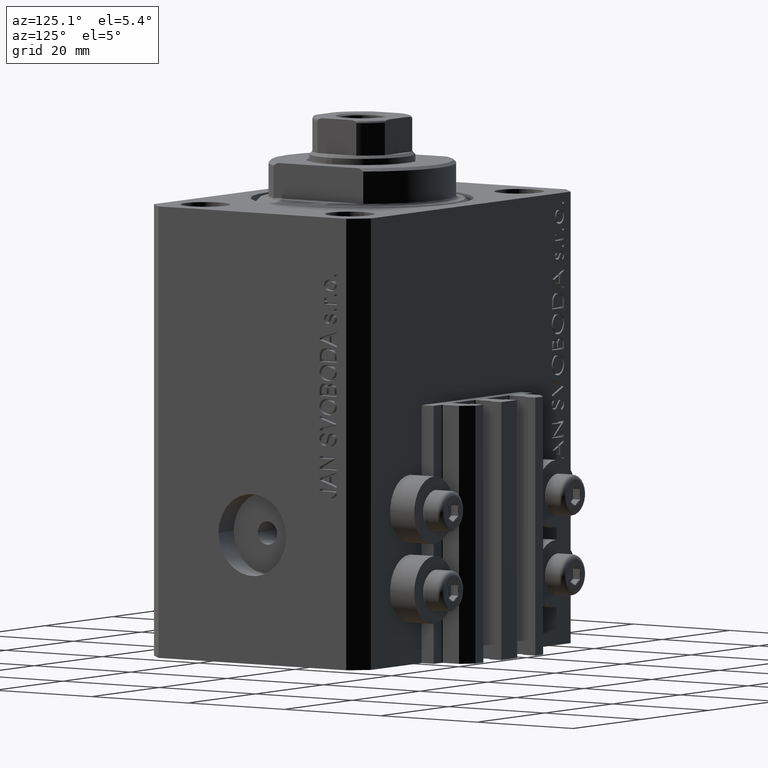
[diagram: clean part render]
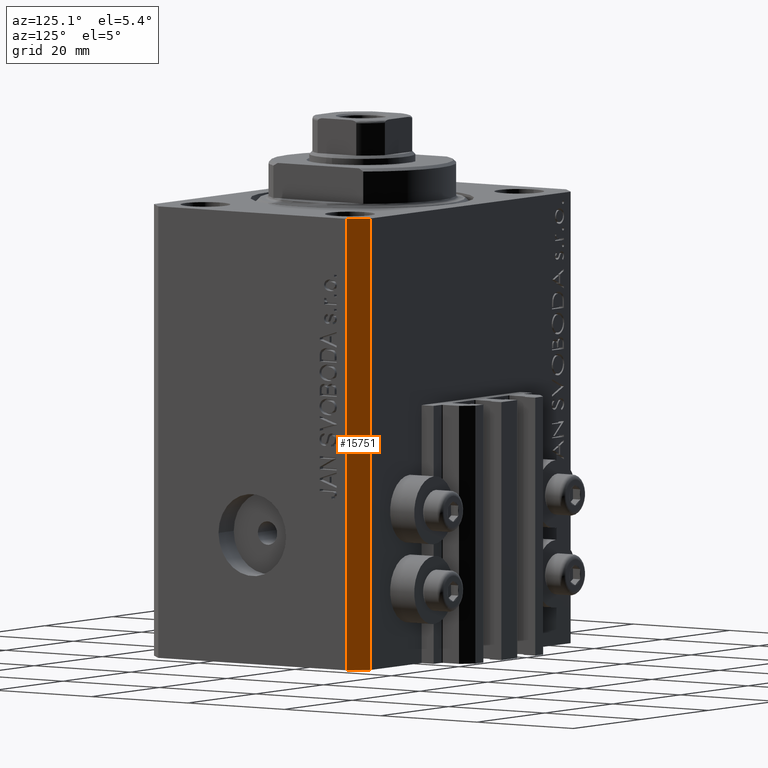
[diagram: same view with one face highlighted and labeled with its STEP entity id]
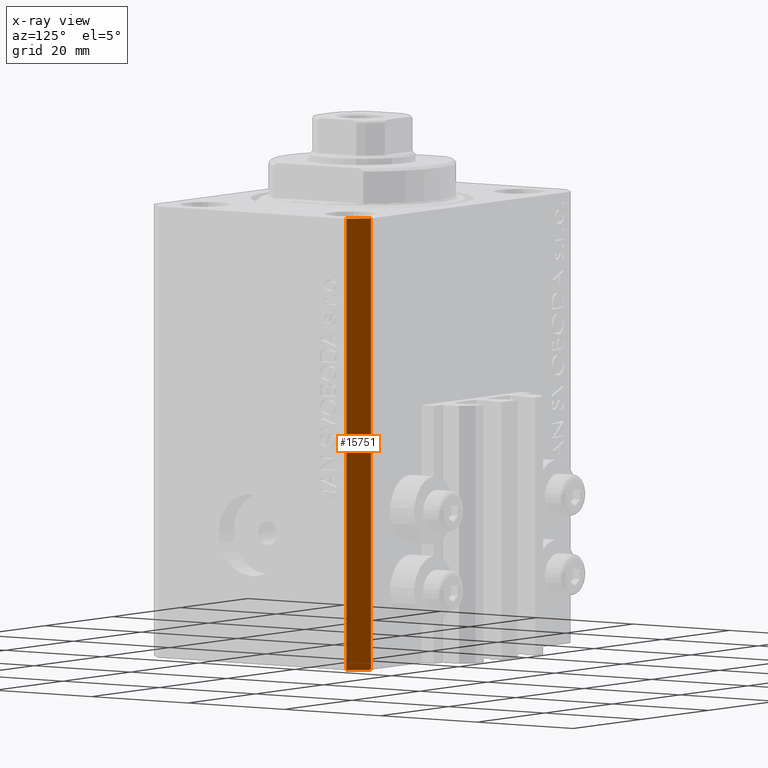
[diagram: x-ray of the same camera — body ghosted, the highlighted face saturated]
A machine part, auxiliary view. The second image highlights one B-rep face of the part: STEP entity #15751.
The next image is the same camera in x-ray: the body ghosted, the highlighted face saturated — about 0% of this face is hidden behind the body in this view.
In plain terms, the highlighted planar face has unit normal (0.7071, 0.7071, 0).
Its self-contained STEP definition (entity closure, byte-faithful):
#937 = PLANE ( 'NONE',  #43554 ) ;
#1240 = VERTEX_POINT ( 'NONE', #36868 ) ;
#3304 = LINE ( 'NONE', #36657, #15096 ) ;
#3352 = EDGE_LOOP ( 'NONE', ( #33491, #31815, #43788, #19016 ) ) ;
#4453 = VECTOR ( 'NONE', #18418, 1000.000000000000000 ) ;
#7662 = FACE_OUTER_BOUND ( 'NONE', #3352, .T. ) ;
#10502 = DIRECTION ( 'NONE',  ( -0.7071067811865344721, 0.7071067811865606734, 0.000000000000000000 ) ) ;
#10852 = LINE ( 'NONE', #13751, #30133 ) ;
#11201 = CARTESIAN_POINT ( 'NONE',  ( 32.49999999999702993, 19.49999999999945999, -77.00000000000000000 ) ) ;
#11253 = CARTESIAN_POINT ( 'NONE',  ( 32.49999999999702993, 19.49999999999945999, -77.00000000000000000 ) ) ;
#11496 = DIRECTION ( 'NONE',  ( 0.000000000000000000, 0.000000000000000000, 1.000000000000000000 ) ) ;
#11967 = VERTEX_POINT ( 'NONE', #42049 ) ;
#13751 = CARTESIAN_POINT ( 'NONE',  ( 32.49999999999702993, 19.49999999999945999, -77.00000000000000000 ) ) ;
#14869 = EDGE_CURVE ( 'NONE', #11967, #30639, #18468, .T. ) ;
#15096 = VECTOR ( 'NONE', #10502, 1000.000000000000000 ) ;
#15581 = DIRECTION ( 'NONE',  ( -0.7071067811865344721, 0.7071067811865606734, 0.000000000000000000 ) ) ;
#15751 = ADVANCED_FACE ( 'NONE', ( #7662 ), #937, .T. ) ;
#18418 = DIRECTION ( 'NONE',  ( 0.000000000000000000, 0.000000000000000000, 1.000000000000000000 ) ) ;
#18468 = LINE ( 'NONE', #36949, #22044 ) ;
#19016 = ORIENTED_EDGE ( 'NONE', *, *, #14869, .T. ) ;
#21679 = DIRECTION ( 'NONE',  ( -0.7071067811865344721, 0.7071067811865606734, 0.000000000000000000 ) ) ;
#22044 = VECTOR ( 'NONE', #11496, 1000.000000000000000 ) ;
#24962 = CARTESIAN_POINT ( 'NONE',  ( 32.49999999999702993, 19.49999999999945999, 0.000000000000000000 ) ) ;
#29228 = LINE ( 'NONE', #11201, #4453 ) ;
#29898 = CARTESIAN_POINT ( 'NONE',  ( 29.49999999999707967, 22.49999999999952038, 0.000000000000000000 ) ) ;
#30133 = VECTOR ( 'NONE', #21679, 1000.000000000000000 ) ;
#30639 = VERTEX_POINT ( 'NONE', #29898 ) ;
#31815 = ORIENTED_EDGE ( 'NONE', *, *, #45240, .F. ) ;
#33491 = ORIENTED_EDGE ( 'NONE', *, *, #42529, .F. ) ;
#34589 = VERTEX_POINT ( 'NONE', #24962 ) ;
#35213 = EDGE_CURVE ( 'NONE', #1240, #11967, #10852, .T. ) ;
#36657 = CARTESIAN_POINT ( 'NONE',  ( 32.49999999999702993, 19.49999999999945999, 0.000000000000000000 ) ) ;
#36868 = CARTESIAN_POINT ( 'NONE',  ( 32.49999999999702993, 19.49999999999945999, -77.00000000000000000 ) ) ;
#36949 = CARTESIAN_POINT ( 'NONE',  ( 29.49999999999707967, 22.49999999999952038, -77.00000000000000000 ) ) ;
#37424 = DIRECTION ( 'NONE',  ( 0.7071067811865606734, 0.7071067811865344721, -0.000000000000000000 ) ) ;
#42049 = CARTESIAN_POINT ( 'NONE',  ( 29.49999999999707967, 22.49999999999952038, -77.00000000000000000 ) ) ;
#42529 = EDGE_CURVE ( 'NONE', #34589, #30639, #3304, .T. ) ;
#43554 = AXIS2_PLACEMENT_3D ( 'NONE', #11253, #37424, #15581 ) ;
#43788 = ORIENTED_EDGE ( 'NONE', *, *, #35213, .T. ) ;
#45240 = EDGE_CURVE ( 'NONE', #1240, #34589, #29228, .T. ) ;